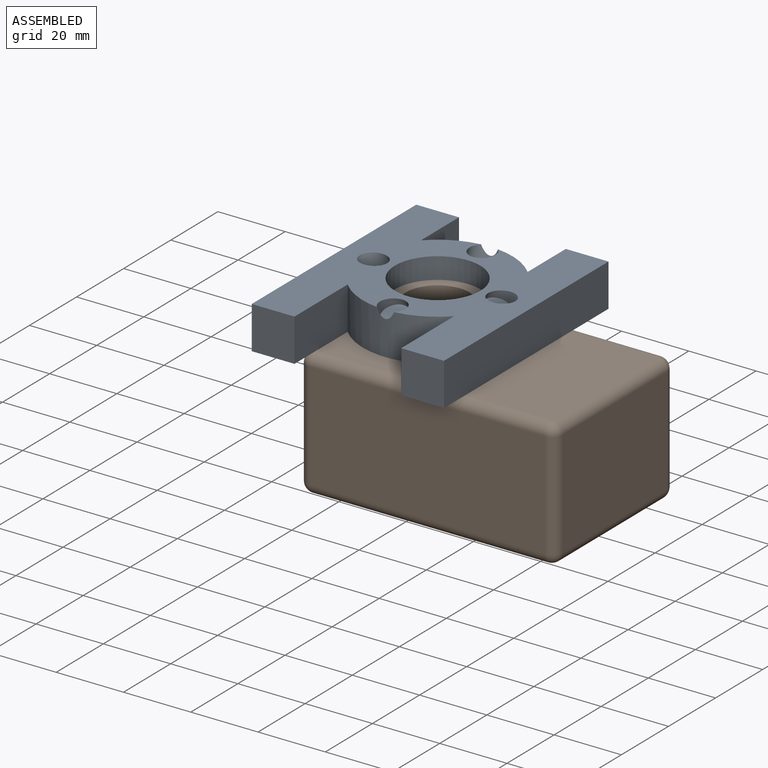
[diagram: assembled view]
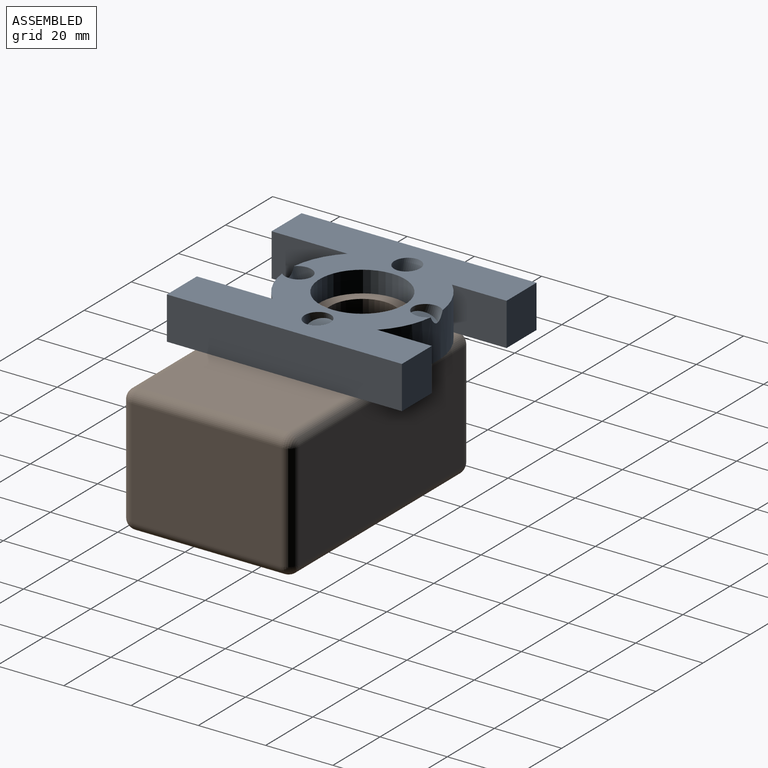
[diagram: assembled view, second angle]
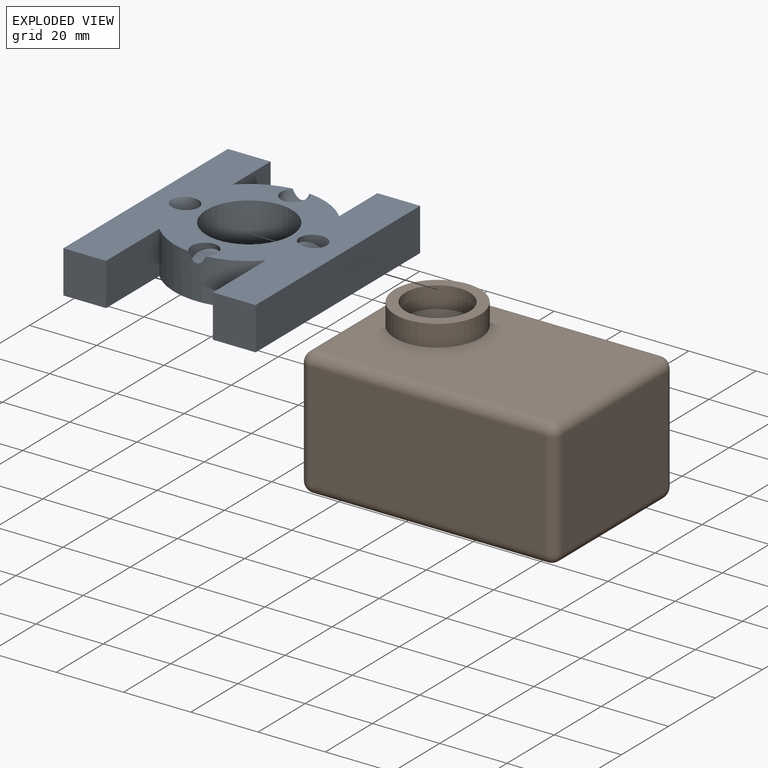
[diagram: exploded view]
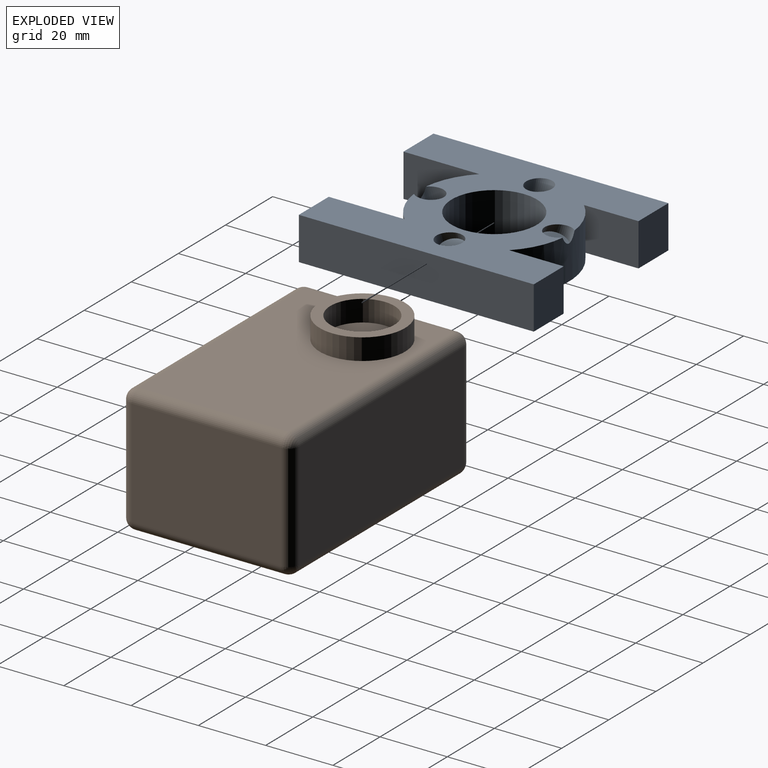
[diagram: exploded view, second angle]
ASSEMBLY  parts=2 mates=2
PART A: 23 faces, bbox 57.7x70.4x15.9 mm
  f0: plane 7.62x7.16mm, normal (0,0.34,0.94), area 45.6mm2, adj f1
  f1: cylinder r=3.81mm len=8.62mm, axis (0,-0.34,-0.94), area 67.7mm2, adj f0,f6,f9
  f2: plane 7.62x7.16mm, normal (0.34,0,0.94), area 45.6mm2, adj f3
  f3: cylinder r=3.81mm len=8.74mm, axis (-0.34,0,-0.94), area 77.2mm2, adj f2,f9
  f4: plane 7.62x7.16mm, normal (0,-0.34,0.94), area 45.6mm2, adj f5
  f5: cylinder r=3.81mm len=8.62mm, axis (0,0.34,-0.94), area 67.7mm2, adj f4,f8,f9
  f6: cylinder r=22.23mm len=31.75mm, axis (0,0,-1), area 440.6mm2, adj f1,f9,f10,f12,f16
  f7: cylinder r=12.7mm len=25.4mm, axis (0,0,-1), area 1013.4mm2, adj f9,f10
  f8: cylinder r=22.23mm len=31.75mm, axis (0,0,-1), area 440.6mm2, adj f5,f9,f10,f11,f17
  f9: plane 70.43x57.73mm, normal (0,0,1), area 2359.4mm2, adj f1,f3,f5,f6,f7,f8,f11,f12
  f10: plane 69.85x57.15mm, normal (0,0,-1), area 2547.3mm2, adj f6,f7,f8,f11,f12,f13,f14,f15
  f11: plane 22.55x12.7mm, normal (1,0,0), area 286.3mm2, adj f8,f9,f10,f15
  f12: plane 16.2x12.7mm, normal (1,0,0), area 205.7mm2, adj f6,f9,f10,f13
  f13: plane 12.7x12.7mm, normal (0,1,0), area 161.3mm2, adj f9,f10,f12,f14
  f14: plane 69.85x12.7mm, normal (-1,0,0), area 887.1mm2, adj f9,f10,f13,f15
  f15: plane 12.7x12.7mm, normal (0,-1,0), area 161.3mm2, adj f9,f10,f11,f14
  f16: plane 16.2x12.7mm, normal (-1,0,0), area 205.7mm2, adj f6,f9,f10,f20
  f17: plane 22.55x12.7mm, normal (-1,0,0), area 286.3mm2, adj f8,f9,f10,f18
  f18: plane 12.7x12.7mm, normal (0,-1,0), area 161.3mm2, adj f9,f10,f17,f19
  f19: plane 69.85x12.7mm, normal (1,0,0), area 887.1mm2, adj f9,f10,f18,f20
  f20: plane 12.7x12.7mm, normal (0,1,0), area 161.3mm2, adj f9,f10,f16,f19
  f21: plane 7.62x7.16mm, normal (-0.34,0,0.94), area 45.6mm2, adj f22
  f22: cylinder r=3.81mm len=8.74mm, axis (0.34,0,-0.94), area 77.2mm2, adj f9,f21
PART B: 35 faces, bbox 76.2x44.5x50.8 mm
  f0: plane 69.85x44.45mm, normal (0,1,0), area 806.4mm2, adj f11,f20,f21,f25,f30,f31,f32,f33
  f1: plane 44.45x31.75mm, normal (1,0,0), area 1411.3mm2, adj f14,f19,f22,f25
  f2: plane 44.45x31.75mm, normal (-1,0,0), area 1411.3mm2, adj f6,f10,f11,f12
  f3: plane 69.85x44.45mm, normal (0,-1,0), area 2598.1mm2, adj f6,f9,f13,f14,f27
  f4: plane 69.85x31.75mm, normal (0,0,1), area 2217.7mm2, adj f9,f10,f19,f20
  f5: plane 69.85x31.75mm, normal (0,0,-1), area 2217.7mm2, adj f12,f13,f21,f22
  f6: cylinder r=3.17mm len=44.45mm, axis (0,0,-1), area 221.7mm2, adj f2,f3,f7,f8
  f7: sphere r=3.17mm, area 15.8mm2, adj f6,f9,f10
  f8: sphere r=3.17mm, area 15.8mm2, adj f6,f12,f13
  f9: cylinder r=3.17mm len=69.85mm, axis (-1,0,0), area 348.4mm2, adj f3,f4,f7,f15
  f10: cylinder r=3.17mm len=31.75mm, axis (0,1,0), area 158.3mm2, adj f2,f4,f7,f16
  f11: cylinder r=3.17mm len=44.45mm, axis (0,0,-1), area 221.7mm2, adj f0,f2,f16,f17
  f12: cylinder r=3.17mm len=31.75mm, axis (0,-1,0), area 158.3mm2, adj f2,f5,f8,f17
  f13: cylinder r=3.17mm len=69.85mm, axis (1,0,0), area 348.4mm2, adj f3,f5,f8,f18
  f14: cylinder r=3.17mm len=44.45mm, axis (0,0,1), area 221.7mm2, adj f1,f3,f15,f18
  f15: sphere r=3.17mm, area 15.8mm2, adj f9,f14,f19
  f16: sphere r=3.17mm, area 15.8mm2, adj f10,f11,f20
  f17: sphere r=3.17mm, area 15.8mm2, adj f11,f12,f21
  f18: sphere r=3.17mm, area 15.8mm2, adj f13,f14,f22
  f19: cylinder r=3.17mm len=31.75mm, axis (0,-1,0), area 158.3mm2, adj f1,f4,f15,f23
  f20: cylinder r=3.17mm len=69.85mm, axis (1,0,0), area 348.4mm2, adj f0,f4,f16,f23
  f21: cylinder r=3.17mm len=69.85mm, axis (-1,0,0), area 348.4mm2, adj f0,f5,f17,f24
  f22: cylinder r=3.17mm len=31.75mm, axis (0,1,0), area 158.3mm2, adj f1,f5,f18,f24
  f23: sphere r=3.17mm, area 15.8mm2, adj f19,f20,f25
  f24: sphere r=3.17mm, area 15.8mm2, adj f21,f22,f25
  f25: cylinder r=3.17mm len=44.45mm, axis (0,0,1), area 221.7mm2, adj f0,f1,f23,f24
  f26: cylinder r=9.53mm len=19.05mm, axis (0,1,0), area 380mm2, adj f28,f29
  f27: cylinder r=12.7mm len=25.4mm, axis (0,1,0), area 506.7mm2, adj f3,f28
  f28: plane 25.4x25.4mm, normal (0,-1,0), area 221.7mm2, adj f26,f27
  f29: plane 19.05x19.05mm, normal (0,-1,0), area 285mm2, adj f26
  f30: plane 60.33x0.25mm, normal (0,0,-1), area 15.3mm2, adj f0,f31,f33,f34
  f31: plane 38.1x0.25mm, normal (-1,0,0), area 9.7mm2, adj f0,f30,f32,f34
  f32: plane 60.33x0.25mm, normal (0,0,1), area 15.3mm2, adj f0,f31,f33,f34
  f33: plane 38.1x0.25mm, normal (1,0,0), area 9.7mm2, adj f0,f30,f32,f34
  f34: plane 60.33x38.1mm, normal (0,1,0), area 2298.4mm2, adj f30,f31,f32,f33
PLACE A t=(-15.95,-72.42,46.56)mm
PLACE B rot(axis=(-1,0,0),90deg) t=(3.1,-104.17,27.51)mm
MATE planar B.f3 <-> A.f10  axis (0,0,1) through (3.1,-100.99,46.56)mm
MATE cylindrical B.f26 <-> A.f7  axis (0,0,-1) through (-15.95,-72.42,46.56)mm
